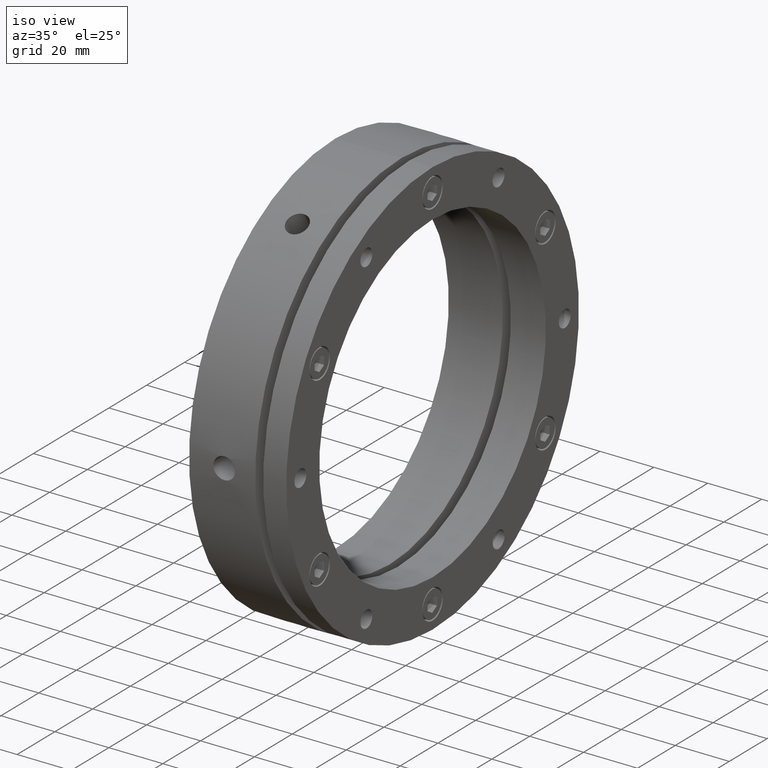
[diagram: clean part render]
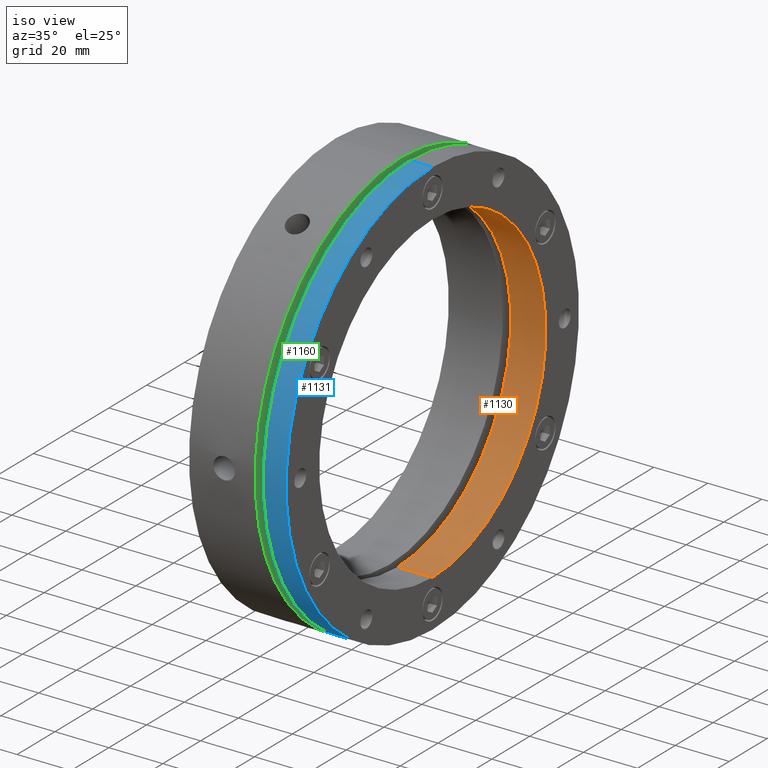
[diagram: same view with three faces highlighted in distinct colors, each labeled with its STEP entity id]
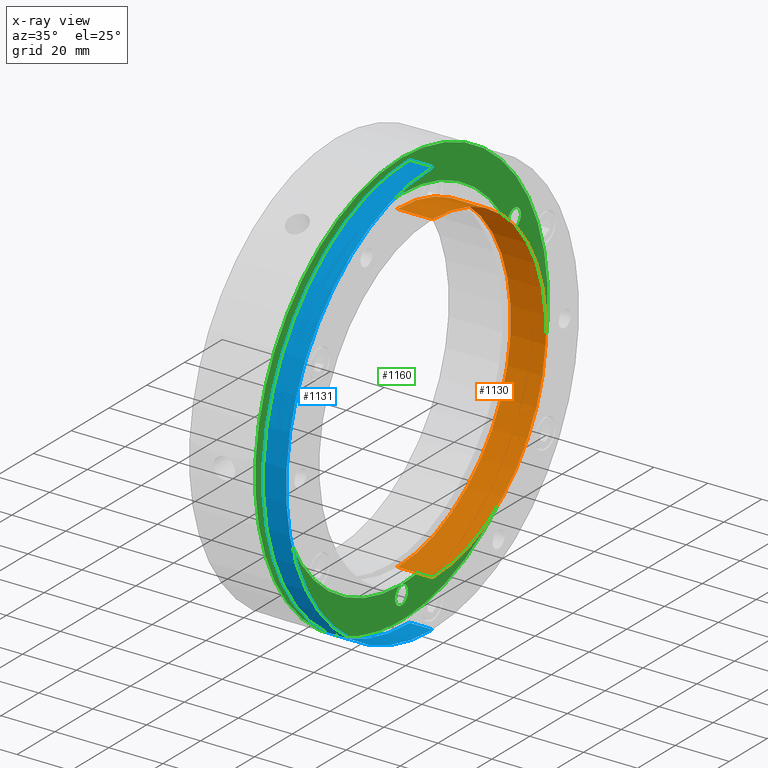
[diagram: x-ray of the same camera — body ghosted, the three highlighted faces saturated]
A machine part, iso view with three faces highlighted in distinct colors.
The next image is the same camera in x-ray (body ghosted, the three faces saturated) — at least one of them is partly hidden behind the body in this view.
Their STEP definitions:

[orange] entity #1130 — the highlighted cylindrical surface (partial cylindrical patch) has radius 60 mm, axis along (1, 0, 0).
#479 = EDGE_CURVE ( 'NONE', #3589, #3596, #3377, .T. ) ;
#714 = CARTESIAN_POINT ( 'NONE',  ( 35.99999999999998600, 0.0000000000000000000, 0.0000000000000000000 ) ) ;
#715 = DIRECTION ( 'NONE',  ( -1.000000000000000000, -0.0000000000000000000, -0.0000000000000000000 ) ) ;
#716 = DIRECTION ( 'NONE',  ( 0.0000000000000000000, 0.0000000000000000000, -1.000000000000000000 ) ) ;
#1130 = ADVANCED_FACE ( 'NONE', ( #1316 ), #1320, .F. ) ;
#1228 = AXIS2_PLACEMENT_3D ( 'NONE', #4453, #4454, #4455 ) ;
#1316 = FACE_OUTER_BOUND ( 'NONE', #3145, .T. ) ;
#1320 = CYLINDRICAL_SURFACE ( 'NONE', #3288, 60.00000000000000000 ) ;
#1594 = CIRCLE ( 'NONE', #1228, 60.00000000000000000 ) ;
#1636 = LINE ( 'NONE', #4530, #1639 ) ;
#1639 = VECTOR ( 'NONE', #4531, 1000.000000000000000 ) ;
#1647 = LINE ( 'NONE', #4546, #1649 ) ;
#1649 = VECTOR ( 'NONE', #4547, 1000.000000000000000 ) ;
#1998 = DIRECTION ( 'NONE',  ( 0.0000000000000000000, 0.0000000000000000000, -1.000000000000000000 ) ) ;
#2001 = DIRECTION ( 'NONE',  ( 1.000000000000000000, 0.0000000000000000000, 0.0000000000000000000 ) ) ;
#2002 = CARTESIAN_POINT ( 'NONE',  ( 17.99999999999998600, 0.0000000000000000000, 0.0000000000000000000 ) ) ;
#2795 = CARTESIAN_POINT ( 'NONE',  ( 35.99999999999998600, 7.347880794884118400E-015, 60.00000000000000000 ) ) ;
#2798 = CARTESIAN_POINT ( 'NONE',  ( 35.99999999999998600, 0.0000000000000000000, -60.00000000000000000 ) ) ;
#2800 = CARTESIAN_POINT ( 'NONE',  ( 22.99999999999998900, 0.0000000000000000000, -60.00000000000000000 ) ) ;
#2887 = CARTESIAN_POINT ( 'NONE',  ( 22.99999999999998900, 7.347880794884118400E-015, 60.00000000000000000 ) ) ;
#3145 = EDGE_LOOP ( 'NONE', ( #4151, #4019, #4148, #4077 ) ) ;
#3288 = AXIS2_PLACEMENT_3D ( 'NONE', #2002, #2001, #1998 ) ;
#3377 = CIRCLE ( 'NONE', #3988, 60.00000000000000000 ) ;
#3589 = VERTEX_POINT ( 'NONE', #2795 ) ;
#3590 = VERTEX_POINT ( 'NONE', #2800 ) ;
#3596 = VERTEX_POINT ( 'NONE', #2798 ) ;
#3681 = VERTEX_POINT ( 'NONE', #2887 ) ;
#3791 = EDGE_CURVE ( 'NONE', #3681, #3590, #1594, .T. ) ;
#3822 = EDGE_CURVE ( 'NONE', #3681, #3589, #1636, .T. ) ;
#3830 = EDGE_CURVE ( 'NONE', #3590, #3596, #1647, .T. ) ;
#3988 = AXIS2_PLACEMENT_3D ( 'NONE', #714, #715, #716 ) ;
#4019 = ORIENTED_EDGE ( 'NONE', *, *, #3791, .T. ) ;
#4077 = ORIENTED_EDGE ( 'NONE', *, *, #479, .F. ) ;
#4148 = ORIENTED_EDGE ( 'NONE', *, *, #3830, .T. ) ;
#4151 = ORIENTED_EDGE ( 'NONE', *, *, #3822, .F. ) ;
#4453 = CARTESIAN_POINT ( 'NONE',  ( 22.99999999999998900, 0.0000000000000000000, 0.0000000000000000000 ) ) ;
#4454 = DIRECTION ( 'NONE',  ( -1.000000000000000000, -0.0000000000000000000, -0.0000000000000000000 ) ) ;
#4455 = DIRECTION ( 'NONE',  ( 0.0000000000000000000, 0.0000000000000000000, -1.000000000000000000 ) ) ;
#4530 = CARTESIAN_POINT ( 'NONE',  ( 17.99999999999998600, 7.347880794884118400E-015, 60.00000000000000000 ) ) ;
#4531 = DIRECTION ( 'NONE',  ( 1.000000000000000000, 0.0000000000000000000, 0.0000000000000000000 ) ) ;
#4546 = CARTESIAN_POINT ( 'NONE',  ( 17.99999999999998600, 0.0000000000000000000, -60.00000000000000000 ) ) ;
#4547 = DIRECTION ( 'NONE',  ( 1.000000000000000000, 0.0000000000000000000, 0.0000000000000000000 ) ) ;

[blue] entity #1131 — the highlighted cylindrical surface (partial cylindrical patch) has radius 77.5 mm, axis along (1, 0, 0).
#461 = EDGE_CURVE ( 'NONE', #3601, #3592, #3401, .T. ) ;
#667 = CARTESIAN_POINT ( 'NONE',  ( 35.99999999999998600, 0.0000000000000000000, 0.0000000000000000000 ) ) ;
#668 = DIRECTION ( 'NONE',  ( -1.000000000000000000, -0.0000000000000000000, -0.0000000000000000000 ) ) ;
#669 = DIRECTION ( 'NONE',  ( 0.0000000000000000000, 0.0000000000000000000, -1.000000000000000000 ) ) ;
#1131 = ADVANCED_FACE ( 'NONE', ( #1318 ), #1322, .T. ) ;
#1211 = AXIS2_PLACEMENT_3D ( 'NONE', #4444, #4445, #4446 ) ;
#1318 = FACE_OUTER_BOUND ( 'NONE', #3144, .T. ) ;
#1322 = CYLINDRICAL_SURFACE ( 'NONE', #3299, 77.50000000000000000 ) ;
#1590 = CIRCLE ( 'NONE', #1211, 77.50000000000000000 ) ;
#1629 = LINE ( 'NONE', #4512, #1631 ) ;
#1631 = VECTOR ( 'NONE', #4513, 1000.000000000000000 ) ;
#1635 = LINE ( 'NONE', #4526, #1637 ) ;
#1637 = VECTOR ( 'NONE', #4522, 1000.000000000000000 ) ;
#1997 = DIRECTION ( 'NONE',  ( 0.0000000000000000000, 0.0000000000000000000, -1.000000000000000000 ) ) ;
#2003 = DIRECTION ( 'NONE',  ( 1.000000000000000000, 0.0000000000000000000, 0.0000000000000000000 ) ) ;
#2005 = CARTESIAN_POINT ( 'NONE',  ( 17.99999999999997900, 0.0000000000000000000, 0.0000000000000000000 ) ) ;
#2796 = CARTESIAN_POINT ( 'NONE',  ( 27.49999999999998200, 9.491012693391988200E-015, 77.50000000000000000 ) ) ;
#2801 = CARTESIAN_POINT ( 'NONE',  ( 35.99999999999998600, 9.491012693391988200E-015, 77.50000000000000000 ) ) ;
#2808 = CARTESIAN_POINT ( 'NONE',  ( 35.99999999999998600, 0.0000000000000000000, -77.50000000000000000 ) ) ;
#2813 = CARTESIAN_POINT ( 'NONE',  ( 27.49999999999998200, 0.0000000000000000000, -77.50000000000000000 ) ) ;
#3144 = EDGE_LOOP ( 'NONE', ( #4140, #4141, #4142, #4149 ) ) ;
#3299 = AXIS2_PLACEMENT_3D ( 'NONE', #2005, #2003, #1997 ) ;
#3401 = CIRCLE ( 'NONE', #4000, 77.50000000000000000 ) ;
#3591 = VERTEX_POINT ( 'NONE', #2796 ) ;
#3592 = VERTEX_POINT ( 'NONE', #2801 ) ;
#3601 = VERTEX_POINT ( 'NONE', #2808 ) ;
#3607 = VERTEX_POINT ( 'NONE', #2813 ) ;
#3789 = EDGE_CURVE ( 'NONE', #3591, #3607, #1590, .T. ) ;
#3817 = EDGE_CURVE ( 'NONE', #3591, #3592, #1629, .T. ) ;
#3821 = EDGE_CURVE ( 'NONE', #3607, #3601, #1635, .T. ) ;
#4000 = AXIS2_PLACEMENT_3D ( 'NONE', #667, #668, #669 ) ;
#4140 = ORIENTED_EDGE ( 'NONE', *, *, #3817, .F. ) ;
#4141 = ORIENTED_EDGE ( 'NONE', *, *, #3789, .T. ) ;
#4142 = ORIENTED_EDGE ( 'NONE', *, *, #3821, .T. ) ;
#4149 = ORIENTED_EDGE ( 'NONE', *, *, #461, .T. ) ;
#4444 = CARTESIAN_POINT ( 'NONE',  ( 27.49999999999998200, 0.0000000000000000000, 0.0000000000000000000 ) ) ;
#4445 = DIRECTION ( 'NONE',  ( 1.000000000000000000, 0.0000000000000000000, 0.0000000000000000000 ) ) ;
#4446 = DIRECTION ( 'NONE',  ( 0.0000000000000000000, 0.0000000000000000000, -1.000000000000000000 ) ) ;
#4512 = CARTESIAN_POINT ( 'NONE',  ( 17.99999999999997900, 9.491012693391988200E-015, 77.50000000000000000 ) ) ;
#4513 = DIRECTION ( 'NONE',  ( 1.000000000000000000, 0.0000000000000000000, 0.0000000000000000000 ) ) ;
#4522 = DIRECTION ( 'NONE',  ( 1.000000000000000000, 0.0000000000000000000, 0.0000000000000000000 ) ) ;
#4526 = CARTESIAN_POINT ( 'NONE',  ( 17.99999999999997900, 0.0000000000000000000, -77.50000000000000000 ) ) ;

[green] entity #1160 — the highlighted planar face has unit normal (-1, 0, 0).
#126 = CIRCLE ( 'NONE', #3962, 3.400000000000000400 ) ;
#135 = CIRCLE ( 'NONE', #3964, 65.50000000000000000 ) ;
#375 = ORIENTED_EDGE ( 'NONE', *, *, #2946, .F. ) ;
#376 = ORIENTED_EDGE ( 'NONE', *, *, #3028, .F. ) ;
#377 = ORIENTED_EDGE ( 'NONE', *, *, #3045, .F. ) ;
#378 = ORIENTED_EDGE ( 'NONE', *, *, #448, .F. ) ;
#379 = ORIENTED_EDGE ( 'NONE', *, *, #435, .F. ) ;
#380 = ORIENTED_EDGE ( 'NONE', *, *, #3855, .F. ) ;
#381 = ORIENTED_EDGE ( 'NONE', *, *, #439, .F. ) ;
#394 = ORIENTED_EDGE ( 'NONE', *, *, #3784, .F. ) ;
#406 = ORIENTED_EDGE ( 'NONE', *, *, #2939, .F. ) ;
#419 = ORIENTED_EDGE ( 'NONE', *, *, #3861, .F. ) ;
#420 = ORIENTED_EDGE ( 'NONE', *, *, #2934, .F. ) ;
#421 = ORIENTED_EDGE ( 'NONE', *, *, #442, .F. ) ;
#423 = ORIENTED_EDGE ( 'NONE', *, *, #528, .F. ) ;
#424 = ORIENTED_EDGE ( 'NONE', *, *, #3025, .F. ) ;
#425 = ORIENTED_EDGE ( 'NONE', *, *, #523, .F. ) ;
#426 = ORIENTED_EDGE ( 'NONE', *, *, #3027, .F. ) ;
#435 = EDGE_CURVE ( 'NONE', #3754, #3688, #4252, .T. ) ;
#439 = EDGE_CURVE ( 'NONE', #3677, #3689, #4246, .T. ) ;
#442 = EDGE_CURVE ( 'NONE', #3766, #3767, #4239, .T. ) ;
#448 = EDGE_CURVE ( 'NONE', #3610, #3771, #4224, .T. ) ;
#523 = EDGE_CURVE ( 'NONE', #3741, #3665, #135, .T. ) ;
#528 = EDGE_CURVE ( 'NONE', #3672, #3735, #126, .T. ) ;
#583 = DIRECTION ( 'NONE',  ( 0.0000000000000000000, 0.0000000000000000000, -1.000000000000000000 ) ) ;
#585 = CARTESIAN_POINT ( 'NONE',  ( 24.49999999999998600, 59.75575286112625400, -34.50000000000003600 ) ) ;
#589 = DIRECTION ( 'NONE',  ( 1.000000000000000000, 0.0000000000000000000, 0.0000000000000000000 ) ) ;
#605 = CARTESIAN_POINT ( 'NONE',  ( 24.49999999999998600, -4.440891999999999900E-015, -69.00000000000000000 ) ) ;
#606 = DIRECTION ( 'NONE',  ( 1.000000000000000000, 0.0000000000000000000, 0.0000000000000000000 ) ) ;
#607 = DIRECTION ( 'NONE',  ( 0.0000000000000000000, 0.0000000000000000000, -1.000000000000000000 ) ) ;
#611 = CARTESIAN_POINT ( 'NONE',  ( 24.49999999999998600, -59.75575286112626800, 34.50000000000001400 ) ) ;
#612 = DIRECTION ( 'NONE',  ( 1.000000000000000000, 0.0000000000000000000, 0.0000000000000000000 ) ) ;
#613 = DIRECTION ( 'NONE',  ( 0.0000000000000000000, 0.0000000000000000000, -1.000000000000000000 ) ) ;
#630 = CARTESIAN_POINT ( 'NONE',  ( 24.49999999999998600, 59.75575286112629700, 34.49999999999995700 ) ) ;
#631 = DIRECTION ( 'NONE',  ( 1.000000000000000000, 0.0000000000000000000, 0.0000000000000000000 ) ) ;
#632 = DIRECTION ( 'NONE',  ( 0.0000000000000000000, 0.0000000000000000000, -1.000000000000000000 ) ) ;
#827 = CARTESIAN_POINT ( 'NONE',  ( 24.49999999999998600, 0.0000000000000000000, 0.0000000000000000000 ) ) ;
#828 = DIRECTION ( 'NONE',  ( 1.000000000000000000, -0.0000000000000000000, -0.0000000000000000000 ) ) ;
#829 = DIRECTION ( 'NONE',  ( 0.0000000000000000000, 0.0000000000000000000, 1.000000000000000000 ) ) ;
#841 = CARTESIAN_POINT ( 'NONE',  ( 24.49999999999998600, 0.0000000000000000000, 69.00000000000000000 ) ) ;
#842 = DIRECTION ( 'NONE',  ( 1.000000000000000000, 0.0000000000000000000, 0.0000000000000000000 ) ) ;
#843 = DIRECTION ( 'NONE',  ( 0.0000000000000000000, 0.0000000000000000000, -1.000000000000000000 ) ) ;
#1160 = ADVANCED_FACE ( 'NONE', ( #1389, #1397, #1393, #1391, #1395, #1398, #1399, #1400 ), #2095, .F. ) ;
#1177 = AXIS2_PLACEMENT_3D ( 'NONE', #4432, #4433, #4434 ) ;
#1208 = AXIS2_PLACEMENT_3D ( 'NONE', #2632, #2633, #2634 ) ;
#1212 = AXIS2_PLACEMENT_3D ( 'NONE', #2625, #2626, #2627 ) ;
#1217 = AXIS2_PLACEMENT_3D ( 'NONE', #2637, #2638, #2639 ) ;
#1236 = AXIS2_PLACEMENT_3D ( 'NONE', #4593, #4594, #4595 ) ;
#1242 = AXIS2_PLACEMENT_3D ( 'NONE', #4574, #4575, #4576 ) ;
#1246 = AXIS2_PLACEMENT_3D ( 'NONE', #2783, #2784, #2785 ) ;
#1389 = FACE_BOUND ( 'NONE', #3110, .T. ) ;
#1391 = FACE_BOUND ( 'NONE', #3111, .T. ) ;
#1393 = FACE_BOUND ( 'NONE', #3094, .T. ) ;
#1395 = FACE_BOUND ( 'NONE', #3096, .T. ) ;
#1397 = FACE_BOUND ( 'NONE', #3095, .T. ) ;
#1398 = FACE_BOUND ( 'NONE', #3085, .T. ) ;
#1399 = FACE_BOUND ( 'NONE', #3089, .T. ) ;
#1400 = FACE_OUTER_BOUND ( 'NONE', #3066, .T. ) ;
#1426 = CIRCLE ( 'NONE', #3292, 3.400000000000000400 ) ;
#1434 = CIRCLE ( 'NONE', #3289, 3.400000000000000400 ) ;
#1445 = CIRCLE ( 'NONE', #3285, 77.50000000000000000 ) ;
#1550 = CIRCLE ( 'NONE', #1246, 3.400000000000000400 ) ;
#1561 = CIRCLE ( 'NONE', #1212, 3.400000000000000400 ) ;
#1563 = CIRCLE ( 'NONE', #1208, 65.50000000000000000 ) ;
#1564 = CIRCLE ( 'NONE', #1217, 77.50000000000000000 ) ;
#1582 = CIRCLE ( 'NONE', #1177, 3.400000000000000400 ) ;
#1650 = CIRCLE ( 'NONE', #1236, 3.400000000000000400 ) ;
#1657 = CIRCLE ( 'NONE', #1242, 3.400000000000000400 ) ;
#2091 = DIRECTION ( 'NONE',  ( -1.000000000000000000, 0.0000000000000000000, 0.0000000000000000000 ) ) ;
#2093 = CARTESIAN_POINT ( 'NONE',  ( 24.49999999999998600, 71.50000000000001400, 0.0000000000000000000 ) ) ;
#2095 = PLANE ( 'NONE',  #3303 ) ;
#2097 = DIRECTION ( 'NONE',  ( 0.0000000000000000000, 0.0000000000000000000, 1.000000000000000000 ) ) ;
#2127 = CARTESIAN_POINT ( 'NONE',  ( 24.49999999999998600, -59.75575286112626800, 34.50000000000001400 ) ) ;
#2128 = DIRECTION ( 'NONE',  ( 1.000000000000000000, 0.0000000000000000000, 0.0000000000000000000 ) ) ;
#2129 = DIRECTION ( 'NONE',  ( 0.0000000000000000000, 0.0000000000000000000, -1.000000000000000000 ) ) ;
#2138 = CARTESIAN_POINT ( 'NONE',  ( 24.49999999999998600, -59.75575286112628200, -34.49999999999998600 ) ) ;
#2139 = DIRECTION ( 'NONE',  ( 1.000000000000000000, 0.0000000000000000000, 0.0000000000000000000 ) ) ;
#2140 = DIRECTION ( 'NONE',  ( 0.0000000000000000000, 0.0000000000000000000, -1.000000000000000000 ) ) ;
#2154 = CARTESIAN_POINT ( 'NONE',  ( 24.49999999999998600, 0.0000000000000000000, 0.0000000000000000000 ) ) ;
#2155 = DIRECTION ( 'NONE',  ( -1.000000000000000000, -0.0000000000000000000, -0.0000000000000000000 ) ) ;
#2156 = DIRECTION ( 'NONE',  ( 0.0000000000000000000, 0.0000000000000000000, -1.000000000000000000 ) ) ;
#2625 = CARTESIAN_POINT ( 'NONE',  ( 24.49999999999998600, 0.0000000000000000000, 69.00000000000000000 ) ) ;
#2626 = DIRECTION ( 'NONE',  ( 1.000000000000000000, 0.0000000000000000000, 0.0000000000000000000 ) ) ;
#2627 = DIRECTION ( 'NONE',  ( 0.0000000000000000000, 0.0000000000000000000, -1.000000000000000000 ) ) ;
#2632 = CARTESIAN_POINT ( 'NONE',  ( 24.49999999999998600, 0.0000000000000000000, 0.0000000000000000000 ) ) ;
#2633 = DIRECTION ( 'NONE',  ( 1.000000000000000000, -0.0000000000000000000, -0.0000000000000000000 ) ) ;
#2634 = DIRECTION ( 'NONE',  ( 0.0000000000000000000, 0.0000000000000000000, 1.000000000000000000 ) ) ;
#2637 = CARTESIAN_POINT ( 'NONE',  ( 24.49999999999998600, 0.0000000000000000000, 0.0000000000000000000 ) ) ;
#2638 = DIRECTION ( 'NONE',  ( -1.000000000000000000, -0.0000000000000000000, -0.0000000000000000000 ) ) ;
#2639 = DIRECTION ( 'NONE',  ( 0.0000000000000000000, 0.0000000000000000000, -1.000000000000000000 ) ) ;
#2783 = CARTESIAN_POINT ( 'NONE',  ( 24.49999999999998600, 59.75575286112629700, 34.49999999999995700 ) ) ;
#2784 = DIRECTION ( 'NONE',  ( 1.000000000000000000, 0.0000000000000000000, 0.0000000000000000000 ) ) ;
#2785 = DIRECTION ( 'NONE',  ( 0.0000000000000000000, 0.0000000000000000000, -1.000000000000000000 ) ) ;
#2816 = CARTESIAN_POINT ( 'NONE',  ( 24.49999999999998600, 59.75575286112629700, 31.09999999999995500 ) ) ;
#2871 = CARTESIAN_POINT ( 'NONE',  ( 24.49999999999998600, 0.0000000000000000000, 65.50000000000000000 ) ) ;
#2878 = CARTESIAN_POINT ( 'NONE',  ( 24.49999999999998600, 4.163799117101000100E-016, 72.40000000000000600 ) ) ;
#2883 = CARTESIAN_POINT ( 'NONE',  ( 24.49999999999998600, -4.024512088289900200E-015, -65.60000000000000900 ) ) ;
#2894 = CARTESIAN_POINT ( 'NONE',  ( 24.49999999999998600, 59.75575286112625400, -37.90000000000004100 ) ) ;
#2895 = CARTESIAN_POINT ( 'NONE',  ( 24.49999999999998600, -4.440891999999999900E-015, -72.40000000000000600 ) ) ;
#2905 = CARTESIAN_POINT ( 'NONE',  ( 24.49999999999998600, -59.75575286112628200, -37.89999999999999100 ) ) ;
#2914 = CARTESIAN_POINT ( 'NONE',  ( 24.49999999999998600, -59.75575286112628200, -31.09999999999998700 ) ) ;
#2934 = EDGE_CURVE ( 'NONE', #3767, #3766, #1426, .T. ) ;
#2939 = EDGE_CURVE ( 'NONE', #3708, #3699, #1434, .T. ) ;
#2946 = EDGE_CURVE ( 'NONE', #3757, #3730, #1445, .T. ) ;
#3025 = EDGE_CURVE ( 'NONE', #3735, #3672, #1561, .T. ) ;
#3027 = EDGE_CURVE ( 'NONE', #3665, #3741, #1563, .T. ) ;
#3028 = EDGE_CURVE ( 'NONE', #3730, #3757, #1564, .T. ) ;
#3045 = EDGE_CURVE ( 'NONE', #3771, #3610, #1550, .T. ) ;
#3066 = EDGE_LOOP ( 'NONE', ( #376, #375 ) ) ;
#3085 = EDGE_LOOP ( 'NONE', ( #380, #379 ) ) ;
#3089 = EDGE_LOOP ( 'NONE', ( #378, #377 ) ) ;
#3094 = EDGE_LOOP ( 'NONE', ( #421, #420 ) ) ;
#3095 = EDGE_LOOP ( 'NONE', ( #424, #423 ) ) ;
#3096 = EDGE_LOOP ( 'NONE', ( #394, #381 ) ) ;
#3110 = EDGE_LOOP ( 'NONE', ( #426, #425 ) ) ;
#3111 = EDGE_LOOP ( 'NONE', ( #419, #406 ) ) ;
#3285 = AXIS2_PLACEMENT_3D ( 'NONE', #2154, #2155, #2156 ) ;
#3289 = AXIS2_PLACEMENT_3D ( 'NONE', #2138, #2139, #2140 ) ;
#3292 = AXIS2_PLACEMENT_3D ( 'NONE', #2127, #2128, #2129 ) ;
#3303 = AXIS2_PLACEMENT_3D ( 'NONE', #2093, #2091, #2097 ) ;
#3610 = VERTEX_POINT ( 'NONE', #2816 ) ;
#3665 = VERTEX_POINT ( 'NONE', #2871 ) ;
#3672 = VERTEX_POINT ( 'NONE', #2878 ) ;
#3677 = VERTEX_POINT ( 'NONE', #2883 ) ;
#3688 = VERTEX_POINT ( 'NONE', #2894 ) ;
#3689 = VERTEX_POINT ( 'NONE', #2895 ) ;
#3699 = VERTEX_POINT ( 'NONE', #2905 ) ;
#3708 = VERTEX_POINT ( 'NONE', #2914 ) ;
#3730 = VERTEX_POINT ( 'NONE', #4367 ) ;
#3735 = VERTEX_POINT ( 'NONE', #4372 ) ;
#3741 = VERTEX_POINT ( 'NONE', #4378 ) ;
#3754 = VERTEX_POINT ( 'NONE', #4391 ) ;
#3757 = VERTEX_POINT ( 'NONE', #4394 ) ;
#3766 = VERTEX_POINT ( 'NONE', #4403 ) ;
#3767 = VERTEX_POINT ( 'NONE', #4404 ) ;
#3771 = VERTEX_POINT ( 'NONE', #4408 ) ;
#3784 = EDGE_CURVE ( 'NONE', #3689, #3677, #1582, .T. ) ;
#3855 = EDGE_CURVE ( 'NONE', #3688, #3754, #1657, .T. ) ;
#3861 = EDGE_CURVE ( 'NONE', #3699, #3708, #1650, .T. ) ;
#3927 = AXIS2_PLACEMENT_3D ( 'NONE', #585, #589, #583 ) ;
#3931 = AXIS2_PLACEMENT_3D ( 'NONE', #605, #606, #607 ) ;
#3939 = AXIS2_PLACEMENT_3D ( 'NONE', #611, #612, #613 ) ;
#3962 = AXIS2_PLACEMENT_3D ( 'NONE', #841, #842, #843 ) ;
#3964 = AXIS2_PLACEMENT_3D ( 'NONE', #827, #828, #829 ) ;
#4007 = AXIS2_PLACEMENT_3D ( 'NONE', #630, #631, #632 ) ;
#4224 = CIRCLE ( 'NONE', #4007, 3.400000000000000400 ) ;
#4239 = CIRCLE ( 'NONE', #3939, 3.400000000000000400 ) ;
#4246 = CIRCLE ( 'NONE', #3931, 3.400000000000000400 ) ;
#4252 = CIRCLE ( 'NONE', #3927, 3.400000000000000400 ) ;
#4367 = CARTESIAN_POINT ( 'NONE',  ( 24.49999999999998600, 0.0000000000000000000, -77.50000000000000000 ) ) ;
#4372 = CARTESIAN_POINT ( 'NONE',  ( 24.49999999999998600, 0.0000000000000000000, 65.60000000000000900 ) ) ;
#4378 = CARTESIAN_POINT ( 'NONE',  ( 24.49999999999998600, 8.021436534415164800E-015, -65.50000000000000000 ) ) ;
#4391 = CARTESIAN_POINT ( 'NONE',  ( 24.49999999999998600, 59.75575286112625400, -31.10000000000003700 ) ) ;
#4394 = CARTESIAN_POINT ( 'NONE',  ( 24.49999999999998600, 9.491012693391988200E-015, 77.50000000000000000 ) ) ;
#4403 = CARTESIAN_POINT ( 'NONE',  ( 24.49999999999998600, -59.75575286112626800, 31.10000000000001600 ) ) ;
#4404 = CARTESIAN_POINT ( 'NONE',  ( 24.49999999999998600, -59.75575286112626800, 37.90000000000002000 ) ) ;
#4408 = CARTESIAN_POINT ( 'NONE',  ( 24.49999999999998600, 59.75575286112629700, 37.89999999999995600 ) ) ;
#4432 = CARTESIAN_POINT ( 'NONE',  ( 24.49999999999998600, -4.440891999999999900E-015, -69.00000000000000000 ) ) ;
#4433 = DIRECTION ( 'NONE',  ( 1.000000000000000000, 0.0000000000000000000, 0.0000000000000000000 ) ) ;
#4434 = DIRECTION ( 'NONE',  ( 0.0000000000000000000, 0.0000000000000000000, -1.000000000000000000 ) ) ;
#4574 = CARTESIAN_POINT ( 'NONE',  ( 24.49999999999998600, 59.75575286112625400, -34.50000000000003600 ) ) ;
#4575 = DIRECTION ( 'NONE',  ( 1.000000000000000000, 0.0000000000000000000, 0.0000000000000000000 ) ) ;
#4576 = DIRECTION ( 'NONE',  ( 0.0000000000000000000, 0.0000000000000000000, -1.000000000000000000 ) ) ;
#4593 = CARTESIAN_POINT ( 'NONE',  ( 24.49999999999998600, -59.75575286112628200, -34.49999999999998600 ) ) ;
#4594 = DIRECTION ( 'NONE',  ( 1.000000000000000000, 0.0000000000000000000, 0.0000000000000000000 ) ) ;
#4595 = DIRECTION ( 'NONE',  ( 0.0000000000000000000, 0.0000000000000000000, -1.000000000000000000 ) ) ;